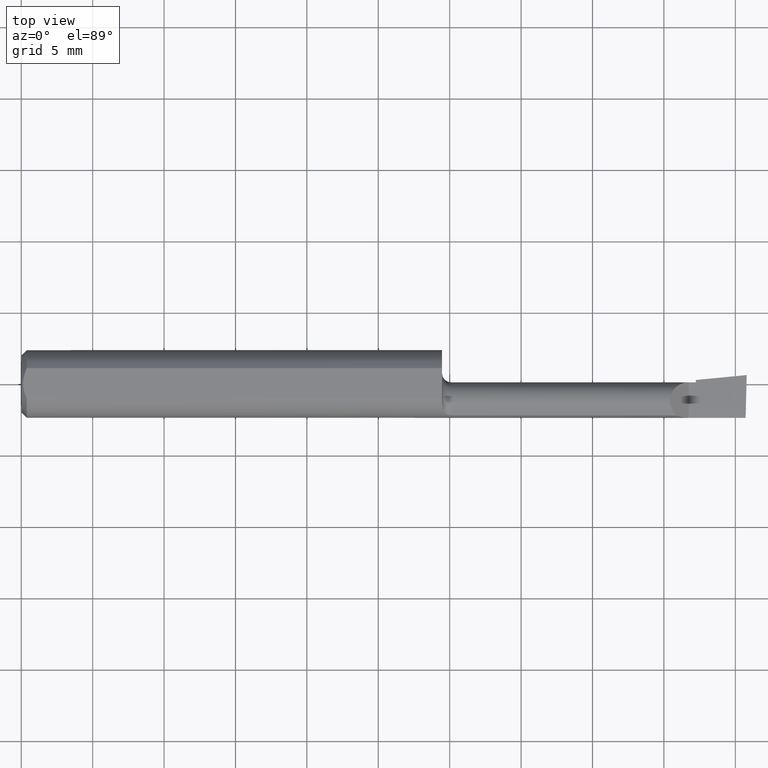
[diagram: clean part render]
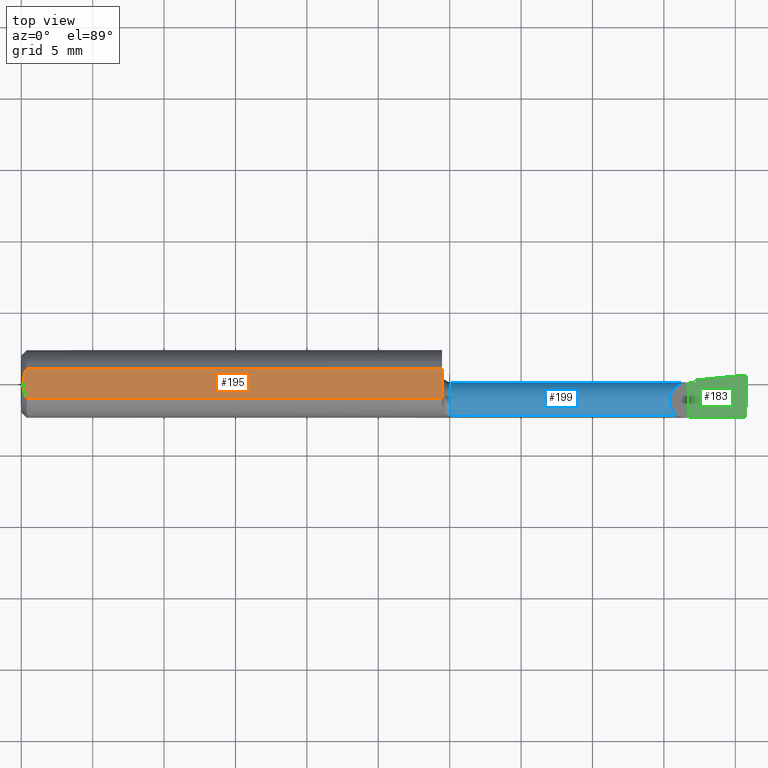
[diagram: same view with three faces highlighted in distinct colors, each labeled with its STEP entity id]
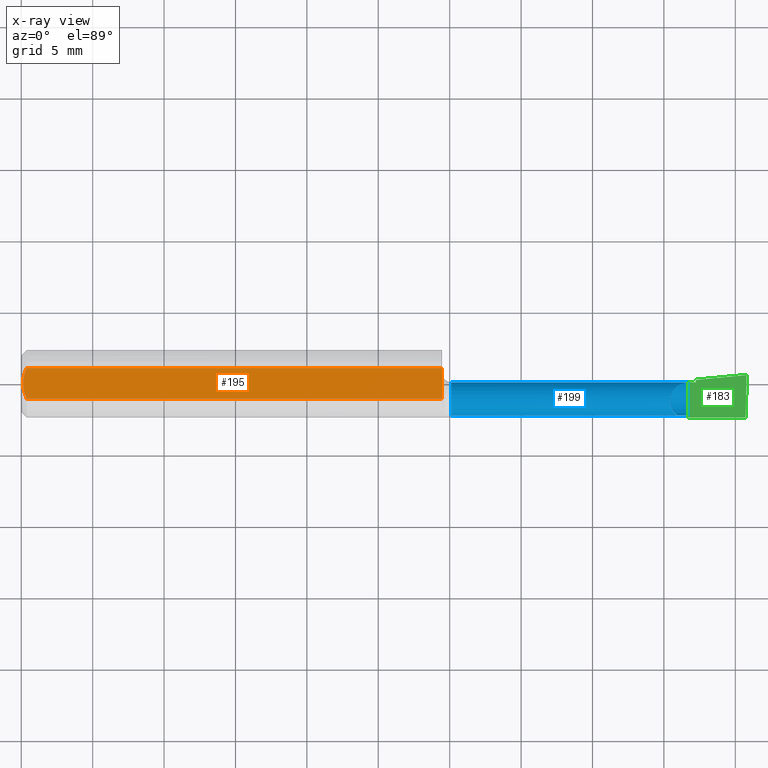
[diagram: x-ray of the same camera — body ghosted, the three highlighted faces saturated]
A machine part, top view with three faces highlighted in distinct colors.
The next image is the same camera in x-ray (body ghosted, the three faces saturated) — at least one of them is partly hidden behind the body in this view.
Their STEP definitions:

[orange] entity #195 — the highlighted planar face has unit normal (0, -0, -1).
#2 = DIRECTION ( 'NONE',  ( -1.000000000000000000, -0.0000000000000000000, -0.0000000000000000000 ) ) ;
#5 = CARTESIAN_POINT ( 'NONE',  ( 0.01499999999999999598, 0.04209513035969837669, 0.08360000000000000764 ) ) ;
#20 = VERTEX_POINT ( 'NONE', #505 ) ;
#27 = EDGE_CURVE ( 'NONE', #149, #20, #403, .T. ) ;
#33 = ORIENTED_EDGE ( 'NONE', *, *, #454, .F. ) ;
#57 = ORIENTED_EDGE ( 'NONE', *, *, #420, .F. ) ;
#105 = VERTEX_POINT ( 'NONE', #559 ) ;
#107 = CARTESIAN_POINT ( 'NONE',  ( 0.009539353699420828961, -0.02875682547511369466, 0.08360000000000000764 ) ) ;
#111 = FACE_OUTER_BOUND ( 'NONE', #336, .T. ) ;
#130 = VERTEX_POINT ( 'NONE', #562 ) ;
#137 = B_SPLINE_CURVE_WITH_KNOTS ( 'NONE', 3,
 ( #552, #506, #107, #511, #151, #472 ),
 .UNSPECIFIED., .F., .F.,
 ( 4, 2, 4 ),
 ( 0.005785415439423114564, 0.006333348270144337384, 0.006881281100865560205 ),
 .UNSPECIFIED. ) ;
#144 = CARTESIAN_POINT ( 'NONE',  ( 0.0000000000000000000, -0.04209513035969835587, 0.08360000000000000764 ) ) ;
#148 = CARTESIAN_POINT ( 'NONE',  ( 0.005000000000000225618, 0.007308422719211825694, 0.08360000000000000764 ) ) ;
#149 = VERTEX_POINT ( 'NONE', #474 ) ;
#151 = CARTESIAN_POINT ( 'NONE',  ( 0.005000000000000227353, -0.007328888879231044290, 0.08360000000000000764 ) ) ;
#179 = PLANE ( 'NONE',  #393 ) ;
#180 = VECTOR ( 'NONE', #526, 39.37007874015748143 ) ;
#188 = CARTESIAN_POINT ( 'NONE',  ( 0.005981829149300843529, 0.01454044632356567453, 0.08360000000000003539 ) ) ;
#195 = ADVANCED_FACE ( 'NONE', ( #111 ), #179, .F. ) ;
#206 = CARTESIAN_POINT ( 'NONE',  ( 0.01499999999999999944, -0.04209513035969835587, 0.08360000000000000764 ) ) ;
#212 = CARTESIAN_POINT ( 'NONE',  ( 0.0000000000000000000, 0.04209513035969837669, 0.08360000000000000764 ) ) ;
#220 = LINE ( 'NONE', #380, #288 ) ;
#225 = ORIENTED_EDGE ( 'NONE', *, *, #348, .F. ) ;
#267 = DIRECTION ( 'NONE',  ( 0.0000000000000000000, -1.189000693621284344E-16, -1.000000000000000000 ) ) ;
#271 = CARTESIAN_POINT ( 'NONE',  ( 2.000000000000000000, 0.1436000000000000332, 0.08359999999999999376 ) ) ;
#288 = VECTOR ( 'NONE', #372, 39.37007874015748143 ) ;
#336 = EDGE_LOOP ( 'NONE', ( #57, #529, #468, #33, #225 ) ) ;
#348 = EDGE_CURVE ( 'NONE', #105, #484, #549, .T. ) ;
#372 = DIRECTION ( 'NONE',  ( -4.268512490100411279E-18, -1.000000000000000000, 1.189000693621284344E-16 ) ) ;
#380 = CARTESIAN_POINT ( 'NONE',  ( 1.160000000000000142, 0.1436000000000000332, 0.08359999999999999376 ) ) ;
#393 = AXIS2_PLACEMENT_3D ( 'NONE', #271, #267, #580 ) ;
#403 = B_SPLINE_CURVE_WITH_KNOTS ( 'NONE', 3,
 ( #455, #148, #188, #406, #405, #5 ),
 .UNSPECIFIED., .F., .F.,
 ( 4, 2, 4 ),
 ( 0.006881281100865560205, 0.007427683811376459971, 0.007974086521887359738 ),
 .UNSPECIFIED. ) ;
#405 = CARTESIAN_POINT ( 'NONE',  ( 0.01203648650249651043, 0.03550565407121124978, 0.08360000000000000764 ) ) ;
#406 = CARTESIAN_POINT ( 'NONE',  ( 0.009492654797564338900, 0.02859466010166627700, 0.08360000000000000764 ) ) ;
#420 = EDGE_CURVE ( 'NONE', #130, #105, #220, .T. ) ;
#426 = VECTOR ( 'NONE', #2, 39.37007874015748143 ) ;
#454 = EDGE_CURVE ( 'NONE', #484, #149, #137, .T. ) ;
#455 = CARTESIAN_POINT ( 'NONE',  ( 0.005000000000000236026, 1.025183009042025117E-17, 0.08360000000000000764 ) ) ;
#468 = ORIENTED_EDGE ( 'NONE', *, *, #27, .F. ) ;
#472 = CARTESIAN_POINT ( 'NONE',  ( 0.005000000000000236026, 1.025183009042025117E-17, 0.08360000000000000764 ) ) ;
#474 = CARTESIAN_POINT ( 'NONE',  ( 0.005000000000000236026, 1.025183009042025117E-17, 0.08360000000000000764 ) ) ;
#484 = VERTEX_POINT ( 'NONE', #206 ) ;
#505 = CARTESIAN_POINT ( 'NONE',  ( 0.01499999999999999598, 0.04209513035969837669, 0.08360000000000000764 ) ) ;
#506 = CARTESIAN_POINT ( 'NONE',  ( 0.01206089165507025218, -0.03555991978469313225, 0.08360000000000000764 ) ) ;
#511 = CARTESIAN_POINT ( 'NONE',  ( 0.005975039161239529238, -0.01453776427033147065, 0.08359999999999997988 ) ) ;
#514 = EDGE_CURVE ( 'NONE', #20, #130, #521, .T. ) ;
#521 = LINE ( 'NONE', #212, #180 ) ;
#526 = DIRECTION ( 'NONE',  ( 1.000000000000000000, 0.0000000000000000000, 0.0000000000000000000 ) ) ;
#529 = ORIENTED_EDGE ( 'NONE', *, *, #514, .F. ) ;
#549 = LINE ( 'NONE', #144, #426 ) ;
#552 = CARTESIAN_POINT ( 'NONE',  ( 0.01499999999999999944, -0.04209513035969835587, 0.08360000000000000764 ) ) ;
#559 = CARTESIAN_POINT ( 'NONE',  ( 1.160000000000000142, -0.04209513035969843220, 0.08360000000000000764 ) ) ;
#562 = CARTESIAN_POINT ( 'NONE',  ( 1.160000000000000142, 0.04209513035969836975, 0.08360000000000000764 ) ) ;
#580 = DIRECTION ( 'NONE',  ( 0.0000000000000000000, 1.000000000000000000, -1.189000693621284344E-16 ) ) ;

[blue] entity #199 — the highlighted cylindrical surface (edge-blend (fillet) strip) has radius 1.3183 mm, axis along (-1, 0, -0).
#1 = VERTEX_POINT ( 'NONE', #101 ) ;
#8 = CARTESIAN_POINT ( 'NONE',  ( 1.522499999999999964, -0.08761684210526324290, -0.03292793615611784575 ) ) ;
#13 = ORIENTED_EDGE ( 'NONE', *, *, #233, .T. ) ;
#25 = VERTEX_POINT ( 'NONE', #54 ) ;
#28 = CIRCLE ( 'NONE', #503, 0.05189999999999993924 ) ;
#29 = EDGE_CURVE ( 'NONE', #453, #128, #327, .T. ) ;
#37 = DIRECTION ( 'NONE',  ( 0.0000000000000000000, -1.000000000000000000, 0.0000000000000000000 ) ) ;
#38 = DIRECTION ( 'NONE',  ( -1.000000000000000000, 4.268512490100411279E-18, -0.0000000000000000000 ) ) ;
#46 = CARTESIAN_POINT ( 'NONE',  ( 2.000000000000000000, -0.04749999999999999362, -0.05189999999999998087 ) ) ;
#52 = CARTESIAN_POINT ( 'NONE',  ( 1.522499999999999964, -0.08761684210526324290, 0.03292793615611784575 ) ) ;
#54 = CARTESIAN_POINT ( 'NONE',  ( 1.840000000000000080, 0.004399999999999856283, 1.959434878635762025E-17 ) ) ;
#64 = CARTESIAN_POINT ( 'NONE',  ( 1.807072063843881971, -0.08761684210526325678, 0.03292793615611783187 ) ) ;
#84 = EDGE_CURVE ( 'NONE', #282, #140, #193, .T. ) ;
#92 = CARTESIAN_POINT ( 'NONE',  ( 1.991784456001939541, -0.07759022324566731965, -0.04514359047872656266 ) ) ;
#100 = CARTESIAN_POINT ( 'NONE',  ( 1.859999999999999876, -0.02123896744732974712, -0.04476570304672526646 ) ) ;
#101 = CARTESIAN_POINT ( 'NONE',  ( 1.859999999999999876, 0.004399999999999983785, 1.030335658007946834E-15 ) ) ;
#106 = ORIENTED_EDGE ( 'NONE', *, *, #262, .F. ) ;
#112 = DIRECTION ( 'NONE',  ( 1.000000000000000000, -4.268512490100411279E-18, 0.0000000000000000000 ) ) ;
#128 = VERTEX_POINT ( 'NONE', #509 ) ;
#133 = DIRECTION ( 'NONE',  ( -4.268512490100412049E-18, -1.000000000000000000, 0.0000000000000000000 ) ) ;
#135 = AXIS2_PLACEMENT_3D ( 'NONE', #349, #350, #567 ) ;
#139 = CARTESIAN_POINT ( 'NONE',  ( 2.215357982367770727E-19, 0.004399999999999949958, 1.030335658007946046E-15 ) ) ;
#140 = VERTEX_POINT ( 'NONE', #64 ) ;
#153 = DIRECTION ( 'NONE',  ( 0.0000000000000000000, -1.000000000000000000, 0.0000000000000000000 ) ) ;
#154 = CIRCLE ( 'NONE', #197, 0.05189999999999998781 ) ;
#159 = CARTESIAN_POINT ( 'NONE',  ( 1.859999999999999876, -0.04749999999999999362, 0.0000000000000000000 ) ) ;
#174 = LINE ( 'NONE', #46, #352 ) ;
#182 = DIRECTION ( 'NONE',  ( -1.000000000000000000, 4.268512490100411279E-18, -0.0000000000000000000 ) ) ;
#193 = LINE ( 'NONE', #52, #452 ) ;
#197 = AXIS2_PLACEMENT_3D ( 'NONE', #588, #182, #37 ) ;
#198 = CARTESIAN_POINT ( 'NONE',  ( 1.807072063843881971, -0.08761684210526325678, 0.03292793615611783187 ) ) ;
#199 = ADVANCED_FACE ( 'NONE', ( #451 ), #534, .T. ) ;
#200 = EDGE_CURVE ( 'NONE', #25, #1, #223, .T. ) ;
#202 = CIRCLE ( 'NONE', #485, 0.05189999999999998781 ) ;
#205 = ORIENTED_EDGE ( 'NONE', *, *, #224, .T. ) ;
#217 = ORIENTED_EDGE ( 'NONE', *, *, #301, .T. ) ;
#223 = LINE ( 'NONE', #139, #515 ) ;
#224 = EDGE_CURVE ( 'NONE', #1, #583, #154, .T. ) ;
#229 = AXIS2_PLACEMENT_3D ( 'NONE', #396, #38, #133 ) ;
#233 = EDGE_CURVE ( 'NONE', #275, #445, #202, .T. ) ;
#246 = CARTESIAN_POINT ( 'NONE',  ( 1.993022307651335812, -0.08761684210526324290, -0.03292793615611784575 ) ) ;
#248 = DIRECTION ( 'NONE',  ( 1.000000000000000000, -4.268512490100411279E-18, 0.0000000000000000000 ) ) ;
#252 = ORIENTED_EDGE ( 'NONE', *, *, #557, .F. ) ;
#258 = CARTESIAN_POINT ( 'NONE',  ( 1.859999999999999876, -0.001959391508022435748, -0.02489303071504986309 ) ) ;
#262 = EDGE_CURVE ( 'NONE', #128, #445, #174, .T. ) ;
#275 = VERTEX_POINT ( 'NONE', #100 ) ;
#277 = ORIENTED_EDGE ( 'NONE', *, *, #84, .T. ) ;
#282 = VERTEX_POINT ( 'NONE', #283 ) ;
#283 = CARTESIAN_POINT ( 'NONE',  ( 1.185000000000000053, -0.08761684210526317351, 0.03292793615611785268 ) ) ;
#301 = EDGE_CURVE ( 'NONE', #453, #377, #358, .T. ) ;
#312 = DIRECTION ( 'NONE',  ( 1.000000000000000000, -4.268512490100411279E-18, 0.0000000000000000000 ) ) ;
#325 = DIRECTION ( 'NONE',  ( -1.000000000000000000, 4.268512490100411279E-18, -0.0000000000000000000 ) ) ;
#327 =( BOUNDED_CURVE ( )  B_SPLINE_CURVE ( 3, ( #548, #92, #501, #365 ),
 .UNSPECIFIED., .F., .T. ) 
 B_SPLINE_CURVE_WITH_KNOTS ( ( 4, 4 ),
 ( 5.609734720198442659, 6.493234751459667997 ),
 .UNSPECIFIED. ) 
 CURVE ( )  GEOMETRIC_REPRESENTATION_ITEM ( )  RATIONAL_B_SPLINE_CURVE ( ( 1.000000000000000000, 0.9360032516356637800, 0.9360032516356637800, 1.000000000000000000 ) ) 
 REPRESENTATION_ITEM ( '' )  );
#349 = CARTESIAN_POINT ( 'NONE',  ( 1.185000000000000053, -0.04749999999999999362, 0.0000000000000000000 ) ) ;
#350 = DIRECTION ( 'NONE',  ( -1.000000000000000000, 4.268512490100411279E-18, -0.0000000000000000000 ) ) ;
#352 = VECTOR ( 'NONE', #404, 39.37007874015748143 ) ;
#357 = CARTESIAN_POINT ( 'NONE',  ( 1.859999999999999876, -0.04749999999999999362, 0.0000000000000000000 ) ) ;
#358 = LINE ( 'NONE', #8, #462 ) ;
#364 = CARTESIAN_POINT ( 'NONE',  ( 1.840000000000000080, 0.004399999999999856283, 1.959434878635762025E-17 ) ) ;
#365 = CARTESIAN_POINT ( 'NONE',  ( 1.991742529076752977, -0.04749999999999999362, -0.05189999999999998087 ) ) ;
#370 = CARTESIAN_POINT ( 'NONE',  ( 1.761940995672496957, -0.05057322517486231156, 0.07805900432750238760 ) ) ;
#371 = CIRCLE ( 'NONE', #135, 0.05189999999999990454 ) ;
#377 = VERTEX_POINT ( 'NONE', #412 ) ;
#383 = CARTESIAN_POINT ( 'NONE',  ( 1.859999999999999876, -0.04749999999999999362, -0.05189999999999998087 ) ) ;
#395 = EDGE_CURVE ( 'NONE', #140, #25, #467, .T. ) ;
#396 = CARTESIAN_POINT ( 'NONE',  ( 0.0000000000000000000, -0.04749999999999998668, 0.0000000000000000000 ) ) ;
#404 = DIRECTION ( 'NONE',  ( -1.000000000000000000, 5.691349986800549142E-18, -0.0000000000000000000 ) ) ;
#412 = CARTESIAN_POINT ( 'NONE',  ( 1.185000000000000053, -0.08761684210526320127, -0.03292793615611782493 ) ) ;
#432 = ORIENTED_EDGE ( 'NONE', *, *, #200, .T. ) ;
#438 = EDGE_CURVE ( 'NONE', #275, #583, #28, .T. ) ;
#445 = VERTEX_POINT ( 'NONE', #383 ) ;
#451 = FACE_OUTER_BOUND ( 'NONE', #495, .T. ) ;
#452 = VECTOR ( 'NONE', #248, 39.37007874015748143 ) ;
#453 = VERTEX_POINT ( 'NONE', #246 ) ;
#462 = VECTOR ( 'NONE', #325, 39.37007874015748143 ) ;
#467 =( BOUNDED_CURVE ( )  B_SPLINE_CURVE ( 3, ( #198, #370, #545, #364 ),
 .UNSPECIFIED., .F., .T. ) 
 B_SPLINE_CURVE_WITH_KNOTS ( ( 4, 4 ),
 ( 5.399685275918360006, 7.853981633974482790 ),
 .UNSPECIFIED. ) 
 CURVE ( )  GEOMETRIC_REPRESENTATION_ITEM ( )  RATIONAL_B_SPLINE_CURVE ( ( 1.000000000000000000, 0.5579494491034518999, 0.5579494491034518999, 1.000000000000000000 ) ) 
 REPRESENTATION_ITEM ( '' )  );
#476 = ORIENTED_EDGE ( 'NONE', *, *, #438, .F. ) ;
#477 = ORIENTED_EDGE ( 'NONE', *, *, #395, .T. ) ;
#485 = AXIS2_PLACEMENT_3D ( 'NONE', #357, #491, #586 ) ;
#491 = DIRECTION ( 'NONE',  ( -1.000000000000000000, 4.268512490100411279E-18, -0.0000000000000000000 ) ) ;
#495 = EDGE_LOOP ( 'NONE', ( #575, #217, #252, #277, #477, #432, #205, #476, #13, #106 ) ) ;
#501 = CARTESIAN_POINT ( 'NONE',  ( 1.991328695984600605, -0.06330364819543497779, -0.05189999999999993924 ) ) ;
#503 = AXIS2_PLACEMENT_3D ( 'NONE', #159, #112, #153 ) ;
#509 = CARTESIAN_POINT ( 'NONE',  ( 1.991742529076752977, -0.04749999999999999362, -0.05189999999999998087 ) ) ;
#515 = VECTOR ( 'NONE', #312, 39.37007874015748143 ) ;
#534 = CYLINDRICAL_SURFACE ( 'NONE', #229, 0.05189999999999994618 ) ;
#545 = CARTESIAN_POINT ( 'NONE',  ( 1.781612990575158539, 0.004399999999999946489, 0.05838700942484081197 ) ) ;
#548 = CARTESIAN_POINT ( 'NONE',  ( 1.993022307651335812, -0.08761684210526324290, -0.03292793615611784575 ) ) ;
#557 = EDGE_CURVE ( 'NONE', #282, #377, #371, .T. ) ;
#567 = DIRECTION ( 'NONE',  ( 0.0000000000000000000, -1.000000000000000000, 0.0000000000000000000 ) ) ;
#575 = ORIENTED_EDGE ( 'NONE', *, *, #29, .F. ) ;
#583 = VERTEX_POINT ( 'NONE', #258 ) ;
#586 = DIRECTION ( 'NONE',  ( 0.0000000000000000000, -1.000000000000000000, 0.0000000000000000000 ) ) ;
#588 = CARTESIAN_POINT ( 'NONE',  ( 1.859999999999999876, -0.04749999999999999362, 0.0000000000000000000 ) ) ;

[green] entity #183 — the highlighted planar face has unit normal (-0, 0, -1).
#1 = VERTEX_POINT ( 'NONE', #101 ) ;
#23 = VECTOR ( 'NONE', #142, 39.37007874015748854 ) ;
#25 = VERTEX_POINT ( 'NONE', #54 ) ;
#31 = PLANE ( 'NONE',  #132 ) ;
#40 = CARTESIAN_POINT ( 'NONE',  ( 2.000000000000000000, -0.2500000000000000555, -6.829619984160658046E-17 ) ) ;
#41 = ORIENTED_EDGE ( 'NONE', *, *, #45, .F. ) ;
#45 = EDGE_CURVE ( 'NONE', #1, #172, #569, .T. ) ;
#54 = CARTESIAN_POINT ( 'NONE',  ( 1.840000000000000080, 0.004399999999999856283, 1.959434878635762025E-17 ) ) ;
#55 = CARTESIAN_POINT ( 'NONE',  ( 2.000000000000002220, 0.02440000000001009070, 3.223447241508514858E-14 ) ) ;
#67 = VECTOR ( 'NONE', #584, 39.37007874015748143 ) ;
#68 = VECTOR ( 'NONE', #324, 39.37007874015748143 ) ;
#93 = VECTOR ( 'NONE', #291, 39.37007874015748143 ) ;
#98 = CARTESIAN_POINT ( 'NONE',  ( 1.859999999999999876, -0.2500000000000000555, 8.608030207862190690E-18 ) ) ;
#101 = CARTESIAN_POINT ( 'NONE',  ( 1.859999999999999876, 0.004399999999999983785, 1.030335658007946834E-15 ) ) ;
#110 = LINE ( 'NONE', #240, #23 ) ;
#117 = EDGE_CURVE ( 'NONE', #564, #25, #314, .T. ) ;
#132 = AXIS2_PLACEMENT_3D ( 'NONE', #40, #270, #272 ) ;
#139 = CARTESIAN_POINT ( 'NONE',  ( 2.215357982367770727E-19, 0.004399999999999949958, 1.030335658007946046E-15 ) ) ;
#142 = DIRECTION ( 'NONE',  ( 0.02617694830785904231, 0.9996573249755575929, -1.459184416195337162E-17 ) ) ;
#143 = EDGE_CURVE ( 'NONE', #172, #354, #299, .T. ) ;
#152 = CARTESIAN_POINT ( 'NONE',  ( 1.840000000000000080, -0.2500000000000000555, 1.959434878635762025E-17 ) ) ;
#166 = DIRECTION ( 'NONE',  ( 0.9953961983671787417, 0.09584575252022461966, -5.467869873542577569E-16 ) ) ;
#172 = VERTEX_POINT ( 'NONE', #533 ) ;
#176 = VECTOR ( 'NONE', #166, 39.37007874015748143 ) ;
#183 = ADVANCED_FACE ( 'NONE', ( #483 ), #31, .F. ) ;
#192 = LINE ( 'NONE', #539, #67 ) ;
#196 = CARTESIAN_POINT ( 'NONE',  ( 1.996910061254835833, -0.09360000000000009979, -6.663204267364653954E-17 ) ) ;
#200 = EDGE_CURVE ( 'NONE', #25, #1, #223, .T. ) ;
#211 = ORIENTED_EDGE ( 'NONE', *, *, #216, .F. ) ;
#216 = EDGE_CURVE ( 'NONE', #347, #564, #192, .T. ) ;
#223 = LINE ( 'NONE', #139, #515 ) ;
#240 = CARTESIAN_POINT ( 'NONE',  ( 1.992819506803470420, -0.2498119721683277061, -6.435184055121686760E-17 ) ) ;
#270 = DIRECTION ( 'NONE',  ( -5.493159289247764363E-16, 0.0000000000000000000, -1.000000000000000000 ) ) ;
#272 = DIRECTION ( 'NONE',  ( -1.000000000000000000, 0.0000000000000000000, 5.493159289247764363E-16 ) ) ;
#290 = EDGE_CURVE ( 'NONE', #347, #354, #110, .T. ) ;
#291 = DIRECTION ( 'NONE',  ( 4.268512490100411279E-18, 1.000000000000000000, -2.344761903626518103E-33 ) ) ;
#299 = LINE ( 'NONE', #333, #176 ) ;
#312 = DIRECTION ( 'NONE',  ( 1.000000000000000000, -4.268512490100411279E-18, 0.0000000000000000000 ) ) ;
#314 = LINE ( 'NONE', #152, #68 ) ;
#324 = DIRECTION ( 'NONE',  ( -0.0000000000000000000, 1.000000000000000000, -0.0000000000000000000 ) ) ;
#333 = CARTESIAN_POINT ( 'NONE',  ( 1.253289949938072301, -0.04749999999999999362, 3.418835249456273698E-16 ) ) ;
#347 = VERTEX_POINT ( 'NONE', #196 ) ;
#354 = VERTEX_POINT ( 'NONE', #55 ) ;
#355 = ORIENTED_EDGE ( 'NONE', *, *, #117, .F. ) ;
#388 = CARTESIAN_POINT ( 'NONE',  ( 1.840000000000000080, -0.09360000000000005815, 1.959434878635762025E-17 ) ) ;
#410 = ORIENTED_EDGE ( 'NONE', *, *, #200, .F. ) ;
#417 = ORIENTED_EDGE ( 'NONE', *, *, #143, .F. ) ;
#436 = EDGE_LOOP ( 'NONE', ( #211, #565, #417, #41, #410, #355 ) ) ;
#483 = FACE_OUTER_BOUND ( 'NONE', #436, .T. ) ;
#515 = VECTOR ( 'NONE', #312, 39.37007874015748143 ) ;
#533 = CARTESIAN_POINT ( 'NONE',  ( 1.859999999999999876, 0.01091953325234677231, 1.035114278849349724E-15 ) ) ;
#539 = CARTESIAN_POINT ( 'NONE',  ( 5.659797890829555466E-31, -0.09359999999999998876, 1.030335658007946046E-15 ) ) ;
#564 = VERTEX_POINT ( 'NONE', #388 ) ;
#565 = ORIENTED_EDGE ( 'NONE', *, *, #290, .T. ) ;
#569 = LINE ( 'NONE', #98, #93 ) ;
#584 = DIRECTION ( 'NONE',  ( -1.000000000000000000, -0.0000000000000000000, -0.0000000000000000000 ) ) ;